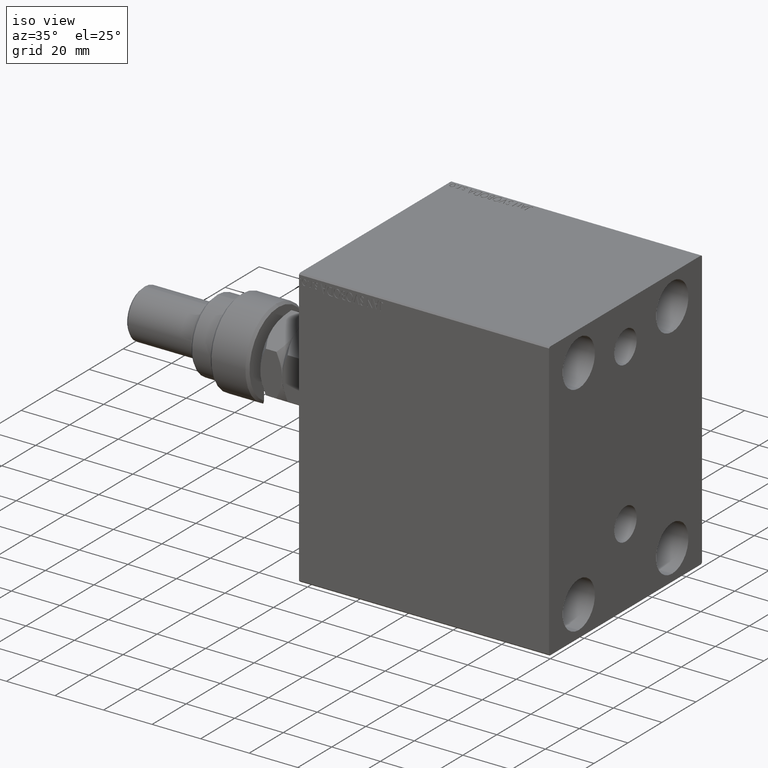
[diagram: clean part render]
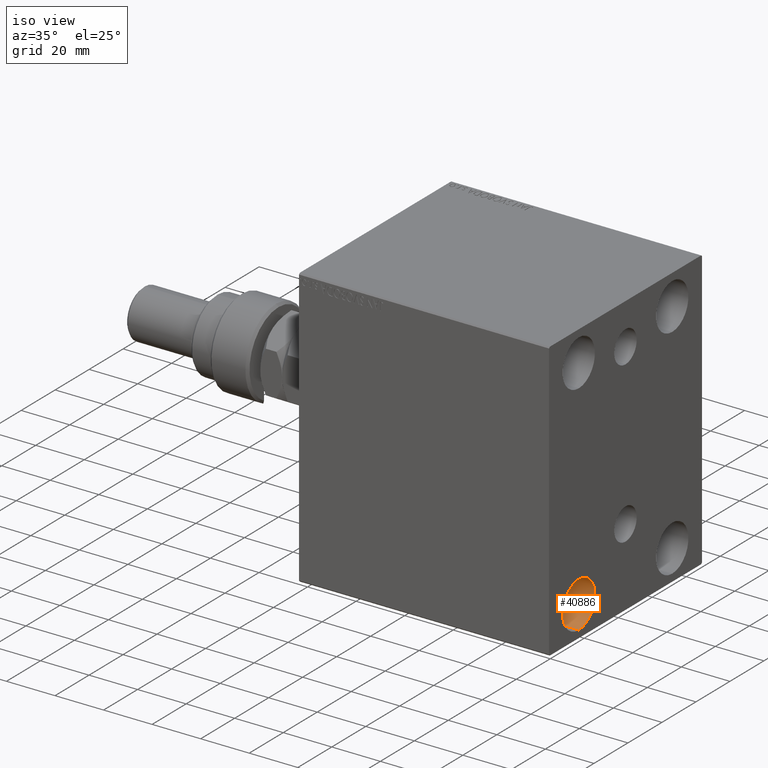
[diagram: same view with one face highlighted and labeled with its STEP entity id]
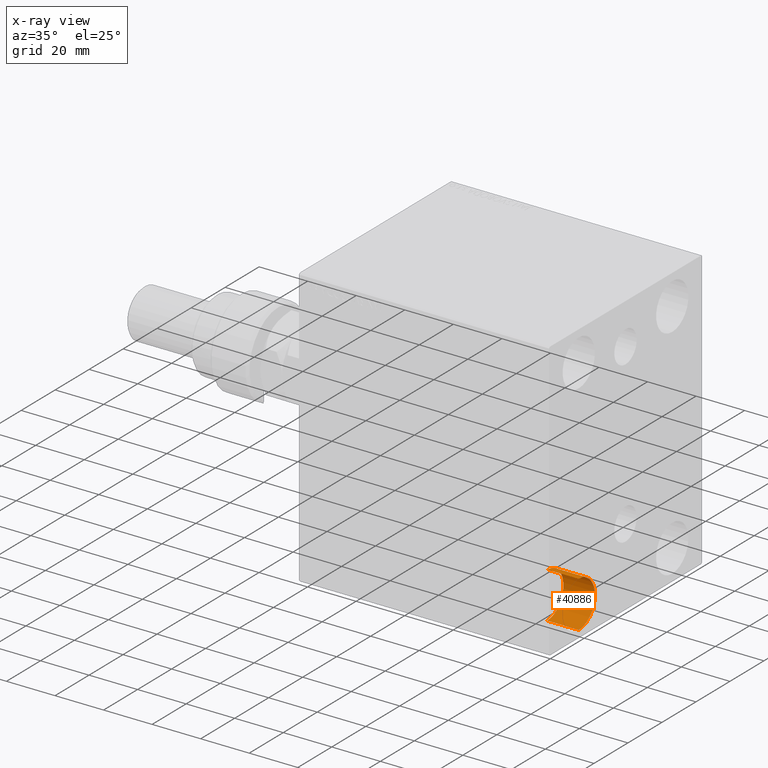
[diagram: x-ray of the same camera — body ghosted, the highlighted face saturated]
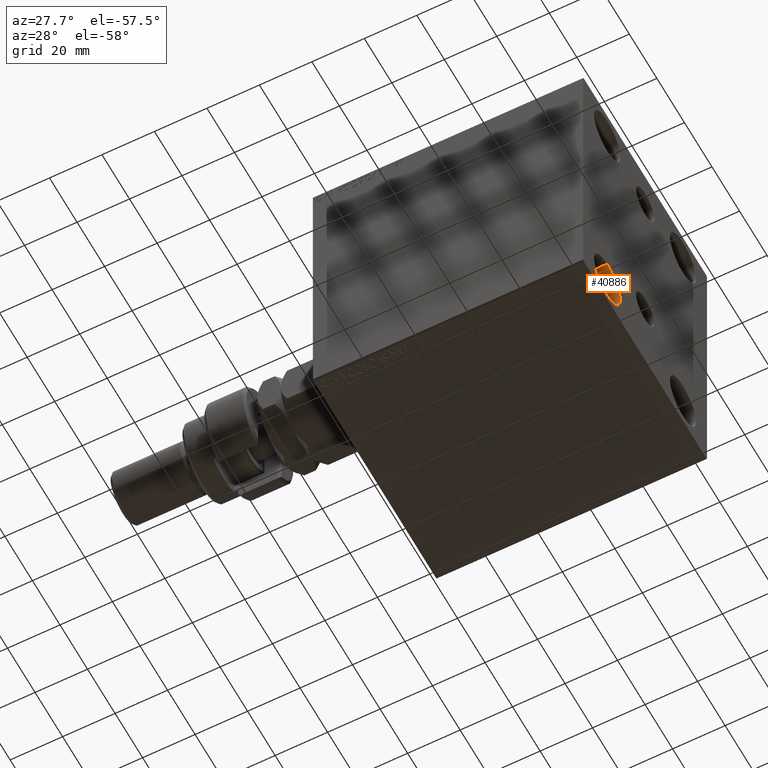
[diagram: same view with one face highlighted and labeled with its STEP entity id]
A machine part, iso view. The second image highlights one B-rep face of the part: STEP entity #40886.
The next image is the same camera in x-ray: the body ghosted, the highlighted face saturated — about 0% of this face is hidden behind the body in this view.
A second angle (auxiliary view) of the same face is appended — the face is thin or edge-on in the first view.
In plain terms, the highlighted cylindrical surface (edge-blend (fillet) strip) has radius 9.5 mm, axis along (1, 0, 0).
Its self-contained STEP definition (entity closure, byte-faithful):
#1787 = CARTESIAN_POINT ( 'NONE',  ( 90.00000000000000000, -27.50000000000000000, -54.49999999999998579 ) ) ;
#3354 = EDGE_CURVE ( 'NONE', #14162, #45654, #43282, .T. ) ;
#4602 = CARTESIAN_POINT ( 'NONE',  ( 103.0000000000000000, -27.50000000000000000, -35.49999999999998579 ) ) ;
#5000 = DIRECTION ( 'NONE',  ( 1.000000000000000000, -0.000000000000000000, -0.000000000000000000 ) ) ;
#6145 = VECTOR ( 'NONE', #43492, 1000.000000000000000 ) ;
#8752 = EDGE_CURVE ( 'NONE', #30597, #24001, #40439, .T. ) ;
#13669 = CARTESIAN_POINT ( 'NONE',  ( 90.00000000000000000, -27.50000000000000000, -54.49999999999998579 ) ) ;
#14162 = VERTEX_POINT ( 'NONE', #4602 ) ;
#15637 = CARTESIAN_POINT ( 'NONE',  ( 90.00000000000000000, -27.50000000000000000, -44.99999999999998579 ) ) ;
#16155 = LINE ( 'NONE', #1787, #17711 ) ;
#17711 = VECTOR ( 'NONE', #30533, 1000.000000000000000 ) ;
#17767 = CYLINDRICAL_SURFACE ( 'NONE', #39486, 9.500000000000001776 ) ;
#18095 = ORIENTED_EDGE ( 'NONE', *, *, #3354, .F. ) ;
#19264 = EDGE_LOOP ( 'NONE', ( #38199, #33195, #31853, #18095 ) ) ;
#21766 = LINE ( 'NONE', #36158, #6145 ) ;
#22247 = DIRECTION ( 'NONE',  ( 0.000000000000000000, 0.000000000000000000, 1.000000000000000000 ) ) ;
#24001 = VERTEX_POINT ( 'NONE', #13669 ) ;
#24606 = AXIS2_PLACEMENT_3D ( 'NONE', #15637, #30018, #22247 ) ;
#24848 = FACE_OUTER_BOUND ( 'NONE', #19264, .T. ) ;
#30018 = DIRECTION ( 'NONE',  ( -1.000000000000000000, -0.000000000000000000, -0.000000000000000000 ) ) ;
#30446 = AXIS2_PLACEMENT_3D ( 'NONE', #31550, #45972, #35329 ) ;
#30533 = DIRECTION ( 'NONE',  ( 1.000000000000000000, -0.000000000000000000, -0.000000000000000000 ) ) ;
#30597 = VERTEX_POINT ( 'NONE', #31256 ) ;
#31256 = CARTESIAN_POINT ( 'NONE',  ( 90.00000000000000000, -27.50000000000000000, -35.49999999999998579 ) ) ;
#31550 = CARTESIAN_POINT ( 'NONE',  ( 103.0000000000000000, -27.50000000000000000, -44.99999999999998579 ) ) ;
#31669 = EDGE_CURVE ( 'NONE', #30597, #14162, #21766, .T. ) ;
#31853 = ORIENTED_EDGE ( 'NONE', *, *, #44860, .T. ) ;
#32150 = CARTESIAN_POINT ( 'NONE',  ( 90.00000000000000000, -27.50000000000000000, -44.99999999999998579 ) ) ;
#33195 = ORIENTED_EDGE ( 'NONE', *, *, #8752, .T. ) ;
#35329 = DIRECTION ( 'NONE',  ( 0.000000000000000000, 0.000000000000000000, 1.000000000000000000 ) ) ;
#36158 = CARTESIAN_POINT ( 'NONE',  ( 90.00000000000000000, -27.50000000000000000, -35.49999999999998579 ) ) ;
#38199 = ORIENTED_EDGE ( 'NONE', *, *, #31669, .F. ) ;
#39486 = AXIS2_PLACEMENT_3D ( 'NONE', #32150, #5000, #44630 ) ;
#40439 = CIRCLE ( 'NONE', #24606, 9.500000000000001776 ) ;
#40886 = ADVANCED_FACE ( 'NONE', ( #24848 ), #17767, .F. ) ;
#43282 = CIRCLE ( 'NONE', #30446, 9.500000000000001776 ) ;
#43492 = DIRECTION ( 'NONE',  ( 1.000000000000000000, -0.000000000000000000, -0.000000000000000000 ) ) ;
#44630 = DIRECTION ( 'NONE',  ( 0.000000000000000000, 0.000000000000000000, -1.000000000000000000 ) ) ;
#44860 = EDGE_CURVE ( 'NONE', #24001, #45654, #16155, .T. ) ;
#45654 = VERTEX_POINT ( 'NONE', #46016 ) ;
#45972 = DIRECTION ( 'NONE',  ( -1.000000000000000000, -0.000000000000000000, -0.000000000000000000 ) ) ;
#46016 = CARTESIAN_POINT ( 'NONE',  ( 103.0000000000000000, -27.50000000000000000, -54.49999999999998579 ) ) ;